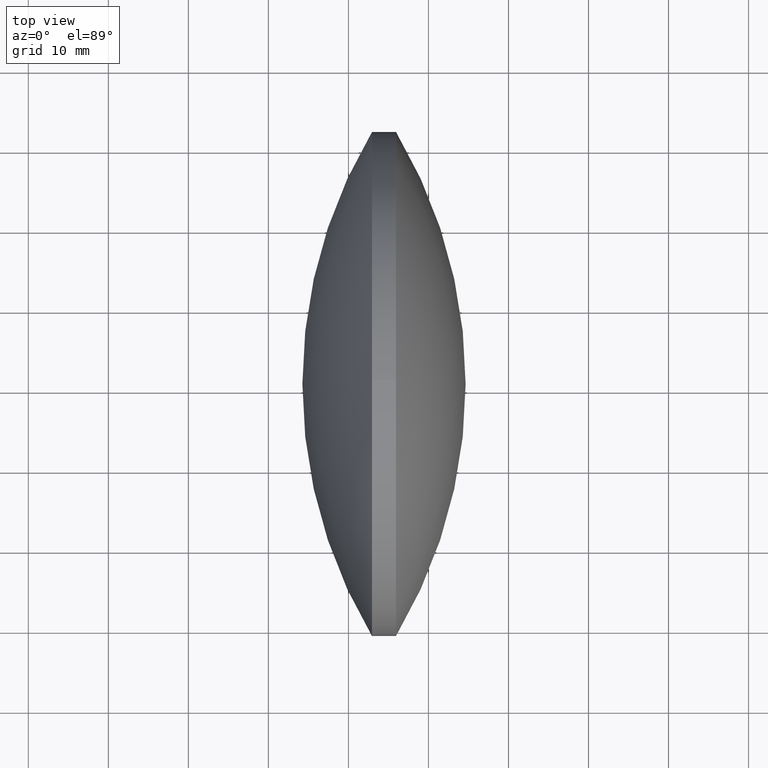
[diagram: clean part render]
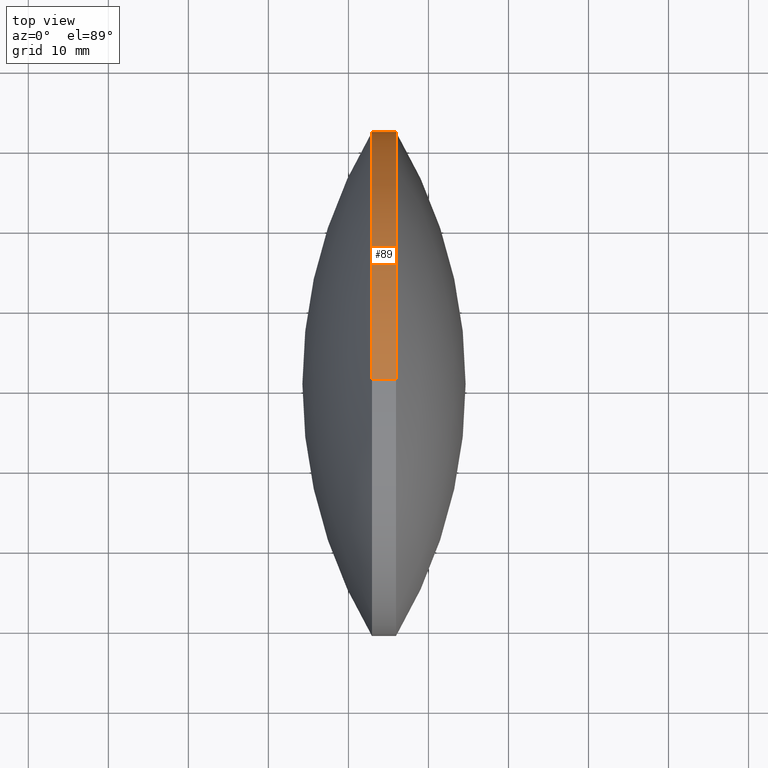
[diagram: same view with one face highlighted and labeled with its STEP entity id]
A machine part, top view. The second image highlights one B-rep face of the part: STEP entity #89.
In plain terms, the highlighted cylindrical surface (partial cylindrical patch) has radius 31.5001 mm, axis along (-1, -0, -0).
Its self-contained STEP definition (entity closure, byte-faithful):
#1 = VERTEX_POINT ( 'NONE', #78 ) ;
#2 = DIRECTION ( 'NONE',  ( 0.0000000000000000000, 0.0000000000000000000, 1.000000000000000000 ) ) ;
#3 = CARTESIAN_POINT ( 'NONE',  ( 215.9444092659714400, 120.5837547940985100, -31.50012600050371200 ) ) ;
#4 = DIRECTION ( 'NONE',  ( -1.000000000000000000, -0.0000000000000000000, -0.0000000000000000000 ) ) ;
#33 = CARTESIAN_POINT ( 'NONE',  ( 212.9444092659714400, 120.5837547940985100, 0.0000000000000000000 ) ) ;
#34 = LINE ( 'NONE', #75, #168 ) ;
#35 = EDGE_CURVE ( 'NONE', #290, #124, #300, .T. ) ;
#39 = VECTOR ( 'NONE', #198, 1000.000000000000000 ) ;
#42 = ORIENTED_EDGE ( 'NONE', *, *, #244, .T. ) ;
#52 = DIRECTION ( 'NONE',  ( -1.000000000000000000, -0.0000000000000000000, -0.0000000000000000000 ) ) ;
#54 = AXIS2_PLACEMENT_3D ( 'NONE', #33, #172, #204 ) ;
#58 = CARTESIAN_POINT ( 'NONE',  ( 215.9444092659714400, 152.0838807946021800, 0.0000000000000000000 ) ) ;
#61 = EDGE_CURVE ( 'NONE', #207, #182, #276, .T. ) ;
#65 = ORIENTED_EDGE ( 'NONE', *, *, #35, .F. ) ;
#75 = CARTESIAN_POINT ( 'NONE',  ( 199.0063995931125200, 120.5837547940985100, 31.50012600050371200 ) ) ;
#77 = VERTEX_POINT ( 'NONE', #104 ) ;
#78 = CARTESIAN_POINT ( 'NONE',  ( 215.9444092659714400, 120.5837547940985100, 31.50012600050371200 ) ) ;
#87 = ORIENTED_EDGE ( 'NONE', *, *, #61, .T. ) ;
#88 = EDGE_CURVE ( 'NONE', #1, #77, #34, .T. ) ;
#89 = ADVANCED_FACE ( 'NONE', ( #192 ), #268, .T. ) ;
#101 = ORIENTED_EDGE ( 'NONE', *, *, #282, .T. ) ;
#104 = CARTESIAN_POINT ( 'NONE',  ( 212.9444092659714400, 120.5837547940985100, 31.50012600050371200 ) ) ;
#108 = DIRECTION ( 'NONE',  ( 0.0000000000000000000, 0.0000000000000000000, 1.000000000000000000 ) ) ;
#110 = LINE ( 'NONE', #252, #39 ) ;
#111 = CARTESIAN_POINT ( 'NONE',  ( 215.9444092659714400, 120.5837547940985100, 0.0000000000000000000 ) ) ;
#112 = CARTESIAN_POINT ( 'NONE',  ( 212.9444092659714400, 152.0838807946021800, 0.0000000000000000000 ) ) ;
#113 = AXIS2_PLACEMENT_3D ( 'NONE', #251, #218, #2 ) ;
#115 = ORIENTED_EDGE ( 'NONE', *, *, #88, .F. ) ;
#123 = CIRCLE ( 'NONE', #54, 31.50012600050371200 ) ;
#124 = VERTEX_POINT ( 'NONE', #220 ) ;
#142 = DIRECTION ( 'NONE',  ( 0.0000000000000000000, 0.0000000000000000000, 1.000000000000000000 ) ) ;
#167 = CARTESIAN_POINT ( 'NONE',  ( 212.9444092659714400, 120.5837547940985100, 0.0000000000000000000 ) ) ;
#168 = VECTOR ( 'NONE', #52, 1000.000000000000000 ) ;
#172 = DIRECTION ( 'NONE',  ( -1.000000000000000000, -0.0000000000000000000, -0.0000000000000000000 ) ) ;
#182 = VERTEX_POINT ( 'NONE', #3 ) ;
#192 = FACE_OUTER_BOUND ( 'NONE', #294, .T. ) ;
#198 = DIRECTION ( 'NONE',  ( -1.000000000000000000, -0.0000000000000000000, -0.0000000000000000000 ) ) ;
#204 = DIRECTION ( 'NONE',  ( 0.0000000000000000000, 0.0000000000000000000, 1.000000000000000000 ) ) ;
#205 = AXIS2_PLACEMENT_3D ( 'NONE', #304, #303, #142 ) ;
#207 = VERTEX_POINT ( 'NONE', #58 ) ;
#218 = DIRECTION ( 'NONE',  ( -1.000000000000000000, -0.0000000000000000000, -0.0000000000000000000 ) ) ;
#220 = CARTESIAN_POINT ( 'NONE',  ( 212.9444092659714400, 120.5837547940985100, -31.50012600050371200 ) ) ;
#222 = EDGE_CURVE ( 'NONE', #77, #290, #123, .T. ) ;
#232 = ORIENTED_EDGE ( 'NONE', *, *, #222, .F. ) ;
#244 = EDGE_CURVE ( 'NONE', #182, #124, #110, .T. ) ;
#248 = DIRECTION ( 'NONE',  ( -1.000000000000000000, -0.0000000000000000000, -0.0000000000000000000 ) ) ;
#251 = CARTESIAN_POINT ( 'NONE',  ( 199.0063995931125200, 120.5837547940985100, 0.0000000000000000000 ) ) ;
#252 = CARTESIAN_POINT ( 'NONE',  ( 199.0063995931125200, 120.5837547940985100, -31.50012600050371200 ) ) ;
#268 = CYLINDRICAL_SURFACE ( 'NONE', #113, 31.50012600050371200 ) ;
#270 = DIRECTION ( 'NONE',  ( 0.0000000000000000000, 0.0000000000000000000, 1.000000000000000000 ) ) ;
#276 = CIRCLE ( 'NONE', #330, 31.50012600050371200 ) ;
#282 = EDGE_CURVE ( 'NONE', #1, #207, #328, .T. ) ;
#290 = VERTEX_POINT ( 'NONE', #112 ) ;
#294 = EDGE_LOOP ( 'NONE', ( #87, #42, #65, #232, #115, #101 ) ) ;
#300 = CIRCLE ( 'NONE', #316, 31.50012600050371200 ) ;
#303 = DIRECTION ( 'NONE',  ( -1.000000000000000000, -0.0000000000000000000, -0.0000000000000000000 ) ) ;
#304 = CARTESIAN_POINT ( 'NONE',  ( 215.9444092659714400, 120.5837547940985100, 0.0000000000000000000 ) ) ;
#316 = AXIS2_PLACEMENT_3D ( 'NONE', #167, #248, #270 ) ;
#328 = CIRCLE ( 'NONE', #205, 31.50012600050371200 ) ;
#330 = AXIS2_PLACEMENT_3D ( 'NONE', #111, #4, #108 ) ;